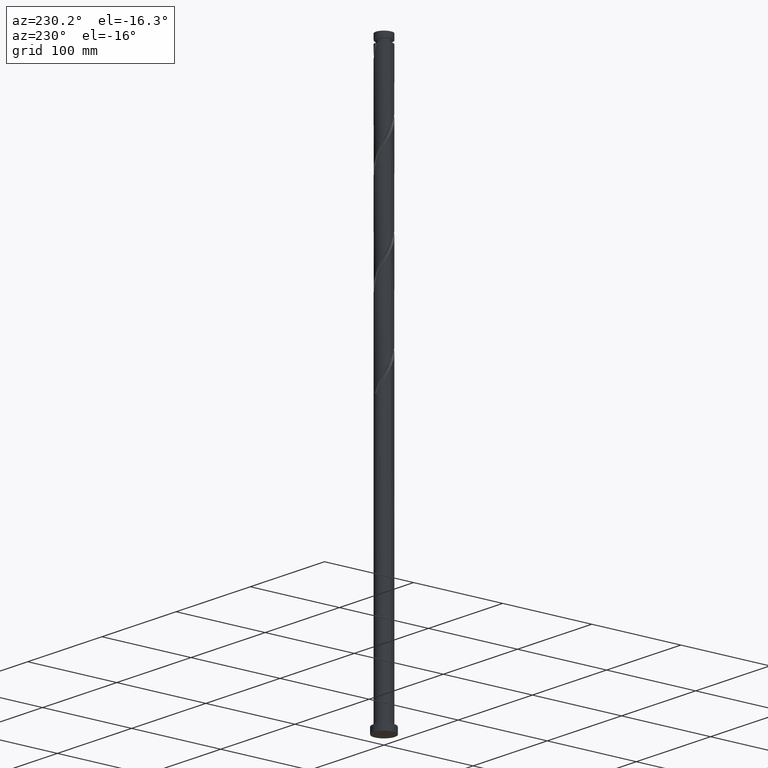
[diagram: clean part render]
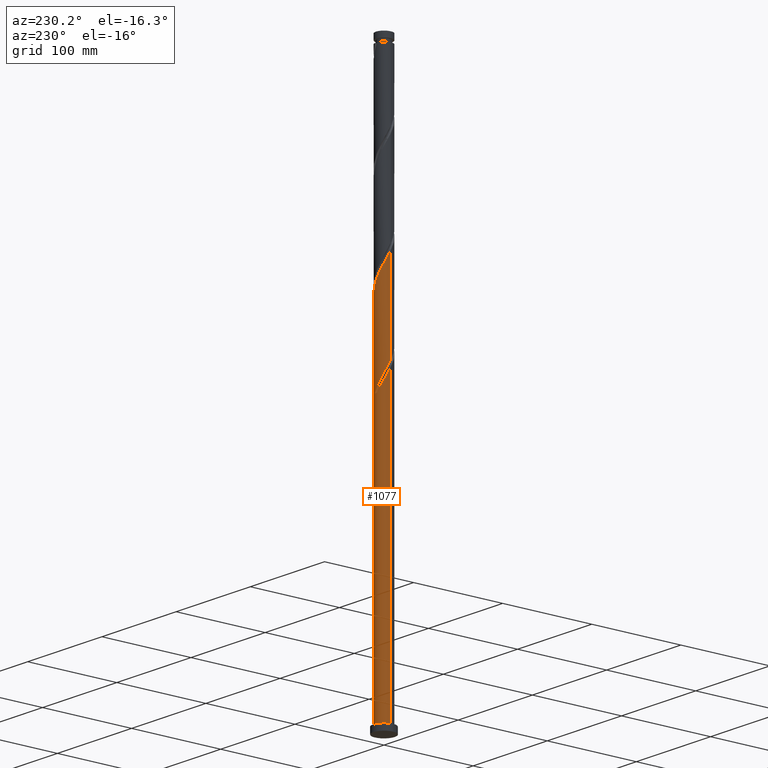
[diagram: same view with one face highlighted and labeled with its STEP entity id]
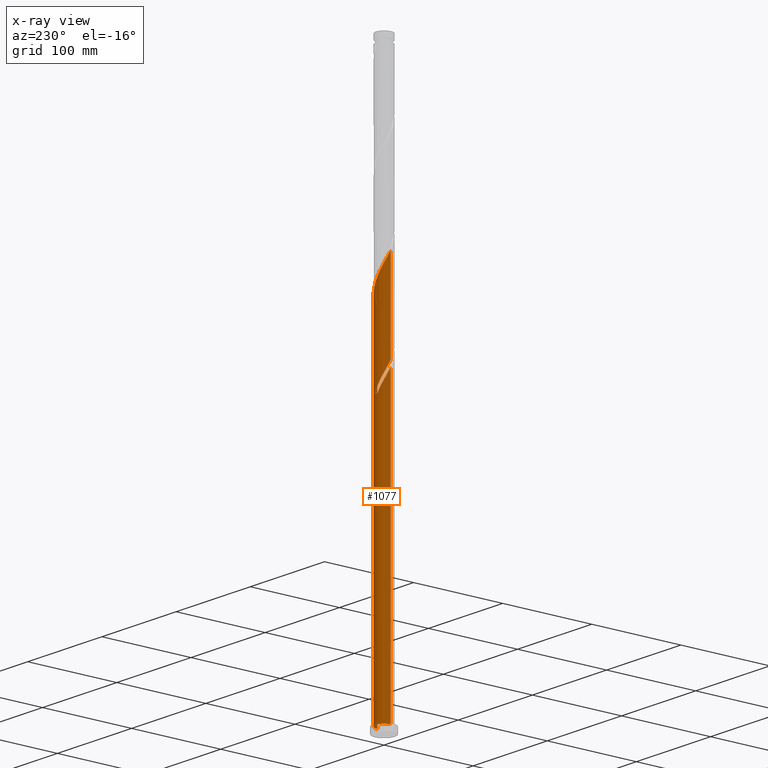
[diagram: x-ray of the same camera — body ghosted, the highlighted face saturated]
A machine part, auxiliary view. The second image highlights one B-rep face of the part: STEP entity #1077.
The next image is the same camera in x-ray: the body ghosted, the highlighted face saturated — about 0% of this face is hidden behind the body in this view.
In plain terms, the highlighted cylindrical surface (edge-blend (fillet) strip) has radius 9 mm, axis along (-0, -0, -1).
Its self-contained STEP definition (entity closure, byte-faithful):
#16 = CARTESIAN_POINT ( 'NONE',  ( -8.617124889607044480, 2.597144323466612725, 329.8753207862947079 ) ) ;
#26 = EDGE_CURVE ( 'NONE', #1802, #465, #83, .T. ) ;
#42 = CARTESIAN_POINT ( 'NONE',  ( 9.000000000000001776, 1.102182119232617911E-15, 7.000000000000000000 ) ) ;
#55 = CARTESIAN_POINT ( 'NONE',  ( -8.693647545373252683, 2.328195085645925477, 428.6988501980592901 ) ) ;
#57 = ORIENTED_EDGE ( 'NONE', *, *, #1929, .F. ) ;
#83 = LINE ( 'NONE', #1291, #1737 ) ;
#89 = CARTESIAN_POINT ( 'NONE',  ( -8.909386591171982062, 1.522610004948568463, 325.2429678451182440 ) ) ;
#95 = CARTESIAN_POINT ( 'NONE',  ( -2.608270746646629057, 8.654041505002851409, 411.7135560804124452 ) ) ;
#107 = CARTESIAN_POINT ( 'NONE',  ( 8.376464026777849625, 3.395638535860556306, 387.0076737274711718 ) ) ;
#116 = EDGE_LOOP ( 'NONE', ( #57, #851, #1689, #573, #688, #2147, #625, #783 ) ) ;
#118 = CARTESIAN_POINT ( 'NONE',  ( -5.558340410535752341, 7.127437305142000135, 417.8900266686476357 ) ) ;
#158 = CARTESIAN_POINT ( 'NONE',  ( -8.857785752436246440, 1.798650111072676694, 331.4194384333533776 ) ) ;
#165 = DIRECTION ( 'NONE',  ( -0.000000000000000000, -0.000000000000000000, -1.000000000000000000 ) ) ;
#192 = LINE ( 'NONE', #867, #1598 ) ;
#219 = CARTESIAN_POINT ( 'NONE',  ( -4.154035934354943116, 8.027421510934408033, 414.8017913745301257 ) ) ;
#274 = CARTESIAN_POINT ( 'NONE',  ( 9.000000000000017764, 6.184639781711398523E-15, 380.5712296586594334 ) ) ;
#307 = CARTESIAN_POINT ( 'NONE',  ( -2.338169303687815503, 8.730891991395633767, 312.8900266686478062 ) ) ;
#311 = DIRECTION ( 'NONE',  ( 0.000000000000000000, 0.000000000000000000, 1.000000000000000000 ) ) ;
#332 = CARTESIAN_POINT ( 'NONE',  ( -9.000000000000014211, -5.646845018084320665E-15, 328.0712296586594334 ) ) ;
#351 = VERTEX_POINT ( 'NONE', #1552 ) ;
#387 = CARTESIAN_POINT ( 'NONE',  ( 1.516114819096040955, 8.871380718654656050, 403.9929678451181303 ) ) ;
#442 = CARTESIAN_POINT ( 'NONE',  ( -9.000000000000019540, 0.3460606909891472682, 432.4278239065998264 ) ) ;
#446 = CARTESIAN_POINT ( 'NONE',  ( -7.757725402154561856, 4.638233202728214266, 319.0664972568828830 ) ) ;
#456 = CARTESIAN_POINT ( 'NONE',  ( -9.000000000000017764, 0.3460606909891347782, 327.4278239065997695 ) ) ;
#464 = CIRCLE ( 'NONE', #1353, 9.000000000000001776 ) ;
#465 = VERTEX_POINT ( 'NONE', #42 ) ;
#475 = CARTESIAN_POINT ( 'NONE',  ( 0.9736840269372206702, 8.985958494997161594, 306.7135560804122179 ) ) ;
#491 =( BOUNDED_CURVE ( )  B_SPLINE_CURVE ( 2, ( #726, #1826, #2008, #158, #16, #641, #1142, #1313, #1478, #1194, #669, #1813, #2158, #680, #1024, #307, #2180, #1995, #974, #475, #2020 ),
 .UNSPECIFIED., .F., .T. ) 
 B_SPLINE_CURVE_WITH_KNOTS ( ( 3, 2, 2, 2, 2, 2, 2, 2, 2, 2, 3 ),
 ( 0.9295293573162904943, 0.9338235294117647189, 0.9411764705882352811, 0.9485294117647058432, 0.9558823529411765163, 0.9632352941176470784, 0.9705882352941176405, 0.9779411764705882026, 0.9852941176470588758, 0.9926470588235294379, 1.000000000000000000 ),
 .UNSPECIFIED. ) 
 CURVE ( )  GEOMETRIC_REPRESENTATION_ITEM ( )  RATIONAL_B_SPLINE_CURVE ( ( 0.9072066346052993779, 0.9068261157890664670, 0.9090909090909375934, 0.9052128875409690689, 0.9090909090909375934, 0.9052128875409690689, 0.9090909090909375934, 0.9052128875409690689, 0.9090909090909375934, 0.9052128875409690689, 0.9090909090909375934, 0.9052128875409690689, 0.9090909090909375934, 0.9052128875409690689, 0.9090909090909375934, 0.9052128875409690689, 0.9090909090909375934, 0.9052128875409690689, 0.9090909090909375934, 0.9052128875409690689, 0.9090909090909375934 ) ) 
 REPRESENTATION_ITEM ( '' )  );
#498 = EDGE_CURVE ( 'NONE', #2028, #351, #192, .T. ) ;
#529 = CARTESIAN_POINT ( 'NONE',  ( 0.000000000000000000, 0.000000000000000000, 630.0000000000000000 ) ) ;
#540 = AXIS2_PLACEMENT_3D ( 'NONE', #941, #311, #1296 ) ;
#571 = CIRCLE ( 'NONE', #540, 9.000000000000001776 ) ;
#573 = ORIENTED_EDGE ( 'NONE', *, *, #498, .F. ) ;
#597 = DIRECTION ( 'NONE',  ( -0.000000000000000000, -0.000000000000000000, -1.000000000000000000 ) ) ;
#601 = CARTESIAN_POINT ( 'NONE',  ( -8.973426399605243020, 0.6910995954766562255, 326.7870854921769705 ) ) ;
#607 = CARTESIAN_POINT ( 'NONE',  ( -8.477908499574528634, 3.133780166343285156, 427.1547325510006203 ) ) ;
#619 = CARTESIAN_POINT ( 'NONE',  ( -8.909386591171982062, 1.522610004948568463, 430.2429678451182440 ) ) ;
#622 = CARTESIAN_POINT ( 'NONE',  ( -4.154035934354943116, 8.027421510934408033, 309.8017913745299552 ) ) ;
#625 = ORIENTED_EDGE ( 'NONE', *, *, #1983, .F. ) ;
#630 = CARTESIAN_POINT ( 'NONE',  ( 7.097032914130066317, 5.534629510252223383, 391.6400266686476925 ) ) ;
#633 = CARTESIAN_POINT ( 'NONE',  ( -4.856188172445346396, 7.577429408038201863, 311.3459090215887954 ) ) ;
#641 = CARTESIAN_POINT ( 'NONE',  ( -8.376464026777835414, 3.395638535860549645, 328.3312031392359245 ) ) ;
#669 = CARTESIAN_POINT ( 'NONE',  ( -5.959206938358891925, 6.744468301194342708, 320.6106149039417232 ) ) ;
#678 = CARTESIAN_POINT ( 'NONE',  ( -9.000000000000014211, -5.646845018084320665E-15, 433.0712296586595471 ) ) ;
#680 = CARTESIAN_POINT ( 'NONE',  ( -3.902654721559266626, 8.152594481661372683, 315.9782619627654299 ) ) ;
#688 = ORIENTED_EDGE ( 'NONE', *, *, #1043, .F. ) ;
#700 = DIRECTION ( 'NONE',  ( -0.000000000000000000, -0.000000000000000000, -1.000000000000000000 ) ) ;
#719 = VERTEX_POINT ( 'NONE', #787 ) ;
#726 = CARTESIAN_POINT ( 'NONE',  ( -9.000000000000007105, -1.873318426634333512E-14, 334.7676472080476060 ) ) ;
#734 = CARTESIAN_POINT ( 'NONE',  ( 3.902654721559274620, 8.152594481661386894, 399.3606149039417232 ) ) ;
#783 = ORIENTED_EDGE ( 'NONE', *, *, #1862, .F. ) ;
#786 = CARTESIAN_POINT ( 'NONE',  ( 5.959206938358901695, 6.744468301194348925, 394.7282619627652025 ) ) ;
#787 = CARTESIAN_POINT ( 'NONE',  ( 1.790977386791925641, 8.820000000000000284, 305.1694384333534913 ) ) ;
#797 = CARTESIAN_POINT ( 'NONE',  ( -7.265543836342427397, 5.311484986535008446, 422.5223796098241564 ) ) ;
#838 = VERTEX_POINT ( 'NONE', #678 ) ;
#851 = ORIENTED_EDGE ( 'NONE', *, *, #26, .T. ) ;
#860 = CARTESIAN_POINT ( 'NONE',  ( -9.000000000000007105, -1.873318426634333512E-14, 334.7676472080476628 ) ) ;
#867 = CARTESIAN_POINT ( 'NONE',  ( -9.000000000000001776, 0.000000000000000000, 630.0000000000000000 ) ) ;
#891 = CARTESIAN_POINT ( 'NONE',  ( -6.773362270530298268, 5.984736770341802625, 420.9782619627653162 ) ) ;
#941 = CARTESIAN_POINT ( 'NONE',  ( 0.000000000000000000, 0.000000000000000000, 7.000000000000000000 ) ) ;
#961 = CARTESIAN_POINT ( 'NONE',  ( 8.947625980237379650, 0.9695304625339665749, 382.3753207862945942 ) ) ;
#974 = CARTESIAN_POINT ( 'NONE',  ( 0.1398118462164806008, 8.998913970455413747, 308.2576737274712286 ) ) ;
#978 = CARTESIAN_POINT ( 'NONE',  ( -1.790977386791922310, 8.820000000000012719, 305.1694384333534913 ) ) ;
#1000 = VERTEX_POINT ( 'NONE', #978 ) ;
#1004 = LINE ( 'NONE', #1884, #1804 ) ;
#1024 = CARTESIAN_POINT ( 'NONE',  ( -3.120412012623539511, 8.441743236528505889, 314.4341443157064759 ) ) ;
#1043 = EDGE_CURVE ( 'NONE', #1000, #2028, #1417, .T. ) ;
#1056 = CARTESIAN_POINT ( 'NONE',  ( 8.617124889607055138, 2.597144323466611393, 385.4635560804122179 ) ) ;
#1067 = CARTESIAN_POINT ( 'NONE',  ( 5.334239913606442229, 7.296670144813490744, 396.2723796098240996 ) ) ;
#1077 = ADVANCED_FACE ( 'NONE', ( #1156 ), #2013, .T. ) ;
#1079 = VERTEX_POINT ( 'NONE', #860 ) ;
#1109 = CARTESIAN_POINT ( 'NONE',  ( 6.584173963111356720, 6.192266457575213323, 393.1841443157065328 ) ) ;
#1129 = CARTESIAN_POINT ( 'NONE',  ( -4.856188172445346396, 7.577429408038201863, 416.3459090215887386 ) ) ;
#1134 = CARTESIAN_POINT ( 'NONE',  ( -9.000000000000014211, -5.646845018084320665E-15, 328.0712296586594334 ) ) ;
#1142 = CARTESIAN_POINT ( 'NONE',  ( -7.993177945963301667, 4.136315549394887547, 326.7870854921770274 ) ) ;
#1145 = CARTESIAN_POINT ( 'NONE',  ( -8.477908499574528634, 3.133780166343285156, 322.1547325510005635 ) ) ;
#1156 = FACE_OUTER_BOUND ( 'NONE', #116, .T. ) ;
#1194 = CARTESIAN_POINT ( 'NONE',  ( -6.584173963111345174, 6.192266457575203553, 322.1547325510005635 ) ) ;
#1244 = CARTESIAN_POINT ( 'NONE',  ( 9.000000000000015987, 0.4861798531133852963, 381.4751488906721306 ) ) ;
#1280 = CARTESIAN_POINT ( 'NONE',  ( -8.973426399605243020, 0.6910995954766562255, 431.7870854921770842 ) ) ;
#1290 = CARTESIAN_POINT ( 'NONE',  ( -9.000000000000014211, -5.646845018084320665E-15, 433.0712296586595471 ) ) ;
#1291 = CARTESIAN_POINT ( 'NONE',  ( 9.000000000000001776, 1.102182119232617911E-15, 630.0000000000000000 ) ) ;
#1295 = CARTESIAN_POINT ( 'NONE',  ( -6.773362270530298268, 5.984736770341802625, 315.9782619627654867 ) ) ;
#1296 = DIRECTION ( 'NONE',  ( 1.000000000000000000, 0.000000000000000000, 0.000000000000000000 ) ) ;
#1305 = CARTESIAN_POINT ( 'NONE',  ( -5.558340410535752341, 7.127437305142000135, 312.8900266686476925 ) ) ;
#1313 = CARTESIAN_POINT ( 'NONE',  ( -7.609891865148765255, 4.876992562929225450, 325.2429678451183008 ) ) ;
#1332 = DIRECTION ( 'NONE',  ( -1.000000000000000000, 0.000000000000000000, 0.000000000000000000 ) ) ;
#1353 = AXIS2_PLACEMENT_3D ( 'NONE', #1664, #2014, #2000 ) ;
#1403 =( BOUNDED_CURVE ( )  B_SPLINE_CURVE ( 2, ( #274, #1244, #961, #1627, #1056, #107, #1972, #1729, #630, #1109, #786, #1067, #1906, #734, #1457, #1405, #387, #1468, #1781, #1739, #1578, #95, #1443, #219, #1129, #118, #2138, #891, #797, #1959, #2125, #607, #55, #619, #1280, #442, #1290 ),
 .UNSPECIFIED., .F., .T. ) 
 B_SPLINE_CURVE_WITH_KNOTS ( ( 3, 2, 2, 2, 2, 2, 2, 2, 2, 2, 2, 2, 2, 2, 2, 2, 2, 2, 3 ),
 ( 0.1795293573162904943, 0.1838235294117647189, 0.1911764705882352811, 0.1985294117647058432, 0.2058823529411765163, 0.2132352941176470784, 0.2205882352941176405, 0.2279411764705882026, 0.2352941176470588758, 0.2426470588235294379, 0.2500000000000000000, 0.2573529411764705621, 0.2647058823529411242, 0.2720588235294117974, 0.2794117647058823595, 0.2867647058823529216, 0.2941176470588234837, 0.3014705882352941568, 0.3045293573162904388 ),
 .UNSPECIFIED. ) 
 CURVE ( )  GEOMETRIC_REPRESENTATION_ITEM ( )  RATIONAL_B_SPLINE_CURVE ( ( 0.9072066346053047070, 0.9068261157890717961, 0.9090909090909431445, 0.9052128875409741759, 0.9090909090909431445, 0.9052128875409741759, 0.9090909090909431445, 0.9052128875409741759, 0.9090909090909431445, 0.9052128875409741759, 0.9090909090909431445, 0.9052128875409741759, 0.9090909090909431445, 0.9052128875409741759, 0.9090909090909431445, 0.9052128875409741759, 0.9090909090909431445, 0.9052128875409741759, 0.9090909090909431445, 0.9052128875409741759, 0.9090909090909431445, 0.9052128875409741759, 0.9090909090909431445, 0.9052128875409741759, 0.9090909090909431445, 0.9052128875409741759, 0.9090909090909431445, 0.9052128875409741759, 0.9090909090909431445, 0.9052128875409741759, 0.9090909090909431445, 0.9052128875409741759, 0.9090909090909431445, 0.9052128875409741759, 0.9090909090909431445, 0.9074776808428455244, 0.9072066346053047070 ) ) 
 REPRESENTATION_ITEM ( '' )  );
#1405 = CARTESIAN_POINT ( 'NONE',  ( 2.338169303687818612, 8.730891991395649754, 402.4488501980594037 ) ) ;
#1417 =( BOUNDED_CURVE ( )  B_SPLINE_CURVE ( 2, ( #2142, #1786, #1963, #622, #633, #1305, #1988, #1295, #2118, #446, #1976, #1145, #1652, #89, #601, #456, #1134 ),
 .UNSPECIFIED., .F., .T. ) 
 B_SPLINE_CURVE_WITH_KNOTS ( ( 3, 2, 2, 2, 2, 2, 2, 2, 3 ),
 ( 0.000000000000000000, 0.007352941176470562112, 0.01470588235294112422, 0.02205882352941179736, 0.02941176470588236294, 0.03676470588235292158, 0.04411764705882348370, 0.05147058823529415683, 0.05452935731629054983 ),
 .UNSPECIFIED. ) 
 CURVE ( )  GEOMETRIC_REPRESENTATION_ITEM ( )  RATIONAL_B_SPLINE_CURVE ( ( 0.9090909090909431445, 0.9052128875409741759, 0.9090909090909431445, 0.9052128875409741759, 0.9090909090909431445, 0.9052128875409741759, 0.9090909090909431445, 0.9052128875409741759, 0.9090909090909431445, 0.9052128875409741759, 0.9090909090909431445, 0.9052128875409741759, 0.9090909090909431445, 0.9052128875409741759, 0.9090909090909431445, 0.9074776808428454133, 0.9072066346053047070 ) ) 
 REPRESENTATION_ITEM ( '' )  );
#1443 = CARTESIAN_POINT ( 'NONE',  ( -3.381153340500785198, 8.340731507968627056, 413.2576737274710581 ) ) ;
#1457 = CARTESIAN_POINT ( 'NONE',  ( 3.120412012623549725, 8.441743236528512995, 400.9047325510006203 ) ) ;
#1468 = CARTESIAN_POINT ( 'NONE',  ( 0.6940603345042639649, 9.011869445913680110, 405.5370854921771979 ) ) ;
#1478 = CARTESIAN_POINT ( 'NONE',  ( -7.097032914130057435, 5.534629510252214502, 323.6988501980594037 ) ) ;
#1495 = EDGE_CURVE ( 'NONE', #1000, #719, #464, .T. ) ;
#1552 = CARTESIAN_POINT ( 'NONE',  ( -9.000000000000001776, 0.000000000000000000, 7.000000000000000000 ) ) ;
#1570 = EDGE_CURVE ( 'NONE', #465, #351, #571, .T. ) ;
#1578 = CARTESIAN_POINT ( 'NONE',  ( -1.790977386791922754, 8.820000000000012719, 410.1694384333535481 ) ) ;
#1598 = VECTOR ( 'NONE', #700, 1000.000000000000000 ) ;
#1627 = CARTESIAN_POINT ( 'NONE',  ( 8.857785752436262428, 1.798650111072676472, 383.9194384333536050 ) ) ;
#1652 = CARTESIAN_POINT ( 'NONE',  ( -8.693647545373252683, 2.328195085645925477, 323.6988501980593469 ) ) ;
#1664 = CARTESIAN_POINT ( 'NONE',  ( 0.000000000000000000, 0.000000000000000000, 305.1694384333534913 ) ) ;
#1689 = ORIENTED_EDGE ( 'NONE', *, *, #1570, .T. ) ;
#1729 = CARTESIAN_POINT ( 'NONE',  ( 7.609891865148780354, 4.876992562929229003, 390.0959090215888523 ) ) ;
#1737 = VECTOR ( 'NONE', #597, 1000.000000000000000 ) ;
#1739 = CARTESIAN_POINT ( 'NONE',  ( -0.9736840269372216694, 8.985958494997177581, 408.6253207862946510 ) ) ;
#1781 = CARTESIAN_POINT ( 'NONE',  ( -0.1398118462164821829, 8.998913970455420852, 407.0812031392358676 ) ) ;
#1786 = CARTESIAN_POINT ( 'NONE',  ( -2.608270746646629057, 8.654041505002851409, 306.7135560804124452 ) ) ;
#1802 = VERTEX_POINT ( 'NONE', #2152 ) ;
#1804 = VECTOR ( 'NONE', #165, 1000.000000000000000 ) ;
#1813 = CARTESIAN_POINT ( 'NONE',  ( -5.334239913606435124, 7.296670144813479197, 319.0664972568828262 ) ) ;
#1826 = CARTESIAN_POINT ( 'NONE',  ( -9.000000000000005329, 0.4861798531133839085, 333.8637279760347951 ) ) ;
#1862 = EDGE_CURVE ( 'NONE', #838, #1079, #1004, .T. ) ;
#1884 = CARTESIAN_POINT ( 'NONE',  ( -9.000000000000001776, 0.000000000000000000, 630.0000000000000000 ) ) ;
#1906 = CARTESIAN_POINT ( 'NONE',  ( 4.618447317582855760, 7.724632313237438375, 397.8164972568828262 ) ) ;
#1929 = EDGE_CURVE ( 'NONE', #1802, #838, #1403, .T. ) ;
#1959 = CARTESIAN_POINT ( 'NONE',  ( -7.757725402154561856, 4.638233202728214266, 424.0664972568830535 ) ) ;
#1963 = CARTESIAN_POINT ( 'NONE',  ( -3.381153340500785198, 8.340731507968627056, 308.2576737274711718 ) ) ;
#1972 = CARTESIAN_POINT ( 'NONE',  ( 7.993177945963313213, 4.136315549394891988, 388.5517913745299552 ) ) ;
#1976 = CARTESIAN_POINT ( 'NONE',  ( -8.117816950864543912, 3.886006684535749489, 320.6106149039417232 ) ) ;
#1983 = EDGE_CURVE ( 'NONE', #1079, #719, #491, .T. ) ;
#1984 = AXIS2_PLACEMENT_3D ( 'NONE', #529, #2025, #1332 ) ;
#1988 = CARTESIAN_POINT ( 'NONE',  ( -6.165851340533023972, 6.556087037741899159, 314.4341443157064191 ) ) ;
#1995 = CARTESIAN_POINT ( 'NONE',  ( -0.6940603345042588579, 9.011869445913658794, 309.8017913745299552 ) ) ;
#2000 = DIRECTION ( 'NONE',  ( -1.000000000000000000, 0.000000000000000000, 0.000000000000000000 ) ) ;
#2008 = CARTESIAN_POINT ( 'NONE',  ( -8.947625980237367216, 0.9695304625339670190, 332.9635560804123315 ) ) ;
#2013 = CYLINDRICAL_SURFACE ( 'NONE', #1984, 9.000000000000001776 ) ;
#2014 = DIRECTION ( 'NONE',  ( 0.000000000000000000, -0.000000000000000000, -1.000000000000000000 ) ) ;
#2020 = CARTESIAN_POINT ( 'NONE',  ( 1.790977386791925641, 8.820000000000000284, 305.1694384333534913 ) ) ;
#2025 = DIRECTION ( 'NONE',  ( -0.000000000000000000, -0.000000000000000000, -1.000000000000000000 ) ) ;
#2028 = VERTEX_POINT ( 'NONE', #332 ) ;
#2118 = CARTESIAN_POINT ( 'NONE',  ( -7.265543836342427397, 5.311484986535008446, 317.5223796098240427 ) ) ;
#2125 = CARTESIAN_POINT ( 'NONE',  ( -8.117816950864543912, 3.886006684535749489, 425.6106149039416664 ) ) ;
#2138 = CARTESIAN_POINT ( 'NONE',  ( -6.165851340533023972, 6.556087037741899159, 419.4341443157063054 ) ) ;
#2142 = CARTESIAN_POINT ( 'NONE',  ( -1.790977386791922310, 8.820000000000012719, 305.1694384333534913 ) ) ;
#2147 = ORIENTED_EDGE ( 'NONE', *, *, #1495, .T. ) ;
#2152 = CARTESIAN_POINT ( 'NONE',  ( 9.000000000000015987, 6.184639781711398523E-15, 380.5712296586594334 ) ) ;
#2158 = CARTESIAN_POINT ( 'NONE',  ( -4.618447317582850431, 7.724632313237429493, 317.5223796098240427 ) ) ;
#2180 = CARTESIAN_POINT ( 'NONE',  ( -1.516114819096037181, 8.871380718654645392, 311.3459090215888523 ) ) ;